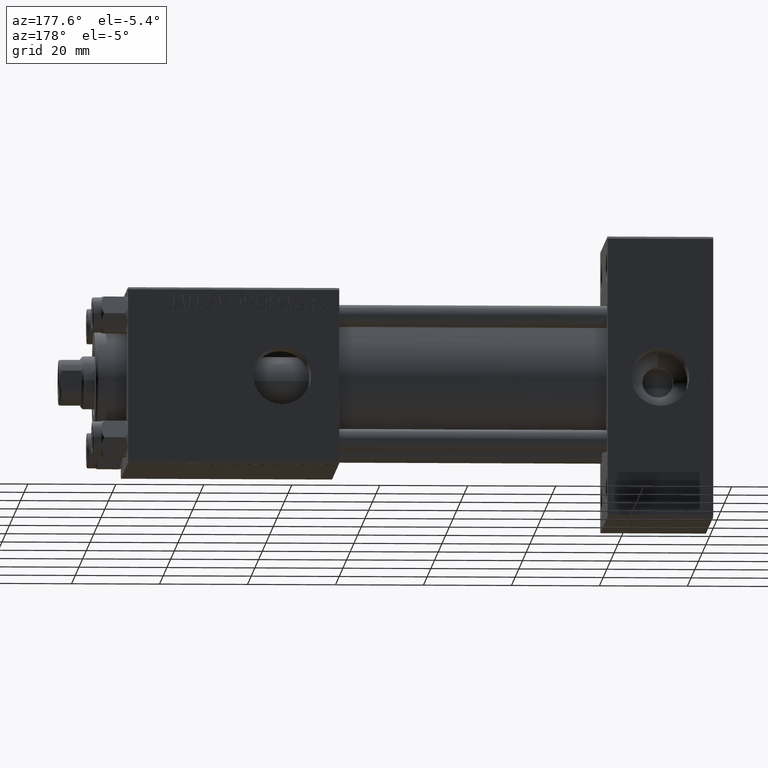
[diagram: clean part render]
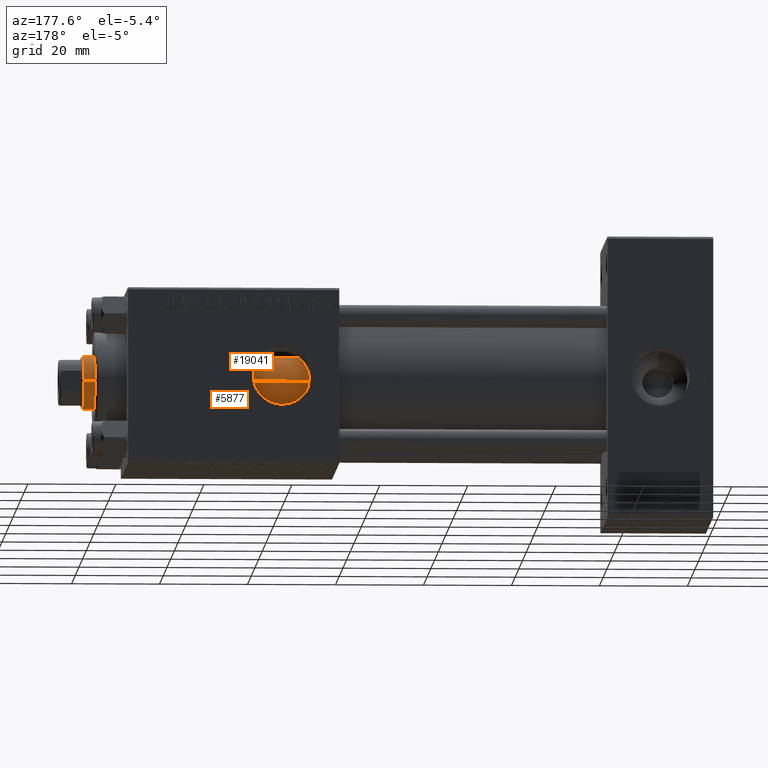
[diagram: same view with one multi-face feature highlighted, each face labeled with its STEP entity id]
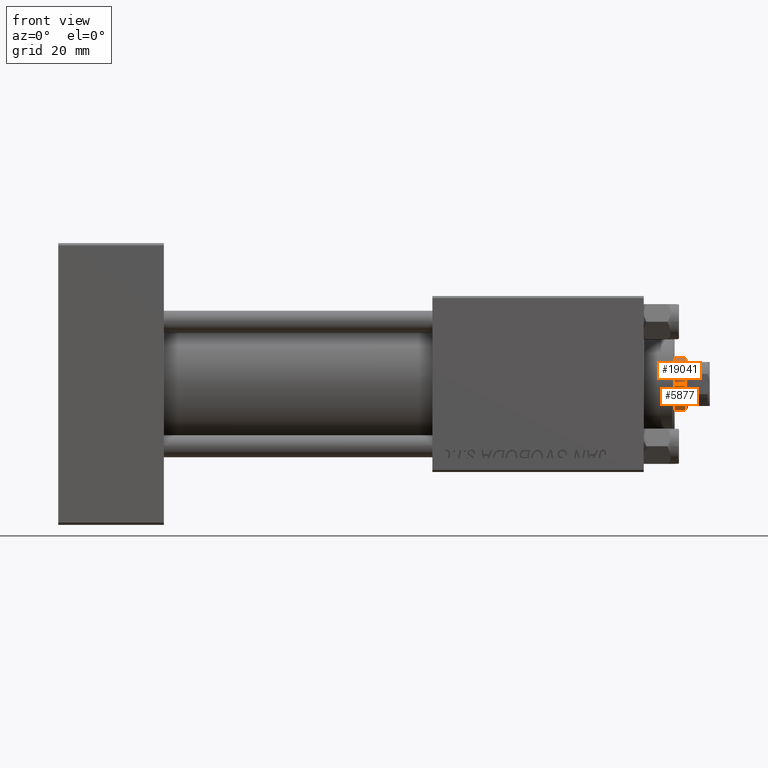
[diagram: same view with one multi-face feature highlighted, each face labeled with its STEP entity id]
A machine part, auxiliary view. The highlighted faces form ONE feature: a constant-radius fillet chain: 2 tangent blend faces with common blend radius 6 mm. The faces share edges in the B-rep.
A second angle (front view) of the same feature is appended — it is thin or edge-on in the first view.
Their STEP definitions:
[1] entity #5877 (Cylinder):
#2192 = CARTESIAN_POINT ( 'NONE',  ( -6.000000000000000888, 0.000000000000000000, 118.5000000000000284 ) ) ;
#2407 = ORIENTED_EDGE ( 'NONE', *, *, #48877, .T. ) ;
#3758 = CARTESIAN_POINT ( 'NONE',  ( 6.000000000000000888, 7.347880794884120722E-16, 27.00000000000000000 ) ) ;
#4783 = DIRECTION ( 'NONE',  ( -0.000000000000000000, -0.000000000000000000, -1.000000000000000000 ) ) ;
#5877 = ADVANCED_FACE ( 'NONE', ( #26299 ), #15169, .T. ) ;
#6856 = DIRECTION ( 'NONE',  ( -0.000000000000000000, -0.000000000000000000, -1.000000000000000000 ) ) ;
#8112 = ORIENTED_EDGE ( 'NONE', *, *, #29943, .T. ) ;
#8752 = AXIS2_PLACEMENT_3D ( 'NONE', #49759, #6856, #29578 ) ;
#8951 = VERTEX_POINT ( 'NONE', #2192 ) ;
#9940 = ORIENTED_EDGE ( 'NONE', *, *, #14184, .T. ) ;
#14015 = VERTEX_POINT ( 'NONE', #31167 ) ;
#14146 = VECTOR ( 'NONE', #4783, 1000.000000000000000 ) ;
#14184 = EDGE_CURVE ( 'NONE', #8951, #24883, #35506, .T. ) ;
#15133 = DIRECTION ( 'NONE',  ( 0.000000000000000000, 0.000000000000000000, 1.000000000000000000 ) ) ;
#15169 = CYLINDRICAL_SURFACE ( 'NONE', #8752, 6.000000000000000888 ) ;
#17315 = LINE ( 'NONE', #17804, #48658 ) ;
#17804 = CARTESIAN_POINT ( 'NONE',  ( 6.000000000000000888, 7.347880794884120722E-16, 119.0000000000000000 ) ) ;
#23054 = CARTESIAN_POINT ( 'NONE',  ( 0.000000000000000000, 0.000000000000000000, 118.5000000000000284 ) ) ;
#24883 = VERTEX_POINT ( 'NONE', #25555 ) ;
#25555 = CARTESIAN_POINT ( 'NONE',  ( 6.000000000000000888, 7.347880794884120722E-16, 118.5000000000000284 ) ) ;
#26299 = FACE_OUTER_BOUND ( 'NONE', #33897, .T. ) ;
#27776 = LINE ( 'NONE', #44161, #14146 ) ;
#28848 = EDGE_CURVE ( 'NONE', #8951, #14015, #27776, .T. ) ;
#29578 = DIRECTION ( 'NONE',  ( -1.000000000000000000, 0.000000000000000000, 0.000000000000000000 ) ) ;
#29943 = EDGE_CURVE ( 'NONE', #39074, #14015, #38367, .T. ) ;
#30299 = ORIENTED_EDGE ( 'NONE', *, *, #28848, .F. ) ;
#31167 = CARTESIAN_POINT ( 'NONE',  ( -6.000000000000000888, 0.000000000000000000, 27.00000000000000000 ) ) ;
#31902 = AXIS2_PLACEMENT_3D ( 'NONE', #49722, #15133, #46176 ) ;
#33897 = EDGE_LOOP ( 'NONE', ( #9940, #2407, #8112, #30299 ) ) ;
#35506 = CIRCLE ( 'NONE', #43576, 6.000000000000000888 ) ;
#36990 = DIRECTION ( 'NONE',  ( -0.000000000000000000, -0.000000000000000000, -1.000000000000000000 ) ) ;
#38367 = CIRCLE ( 'NONE', #31902, 6.000000000000000888 ) ;
#39074 = VERTEX_POINT ( 'NONE', #3758 ) ;
#41746 = DIRECTION ( 'NONE',  ( 0.000000000000000000, 0.000000000000000000, -1.000000000000000000 ) ) ;
#43576 = AXIS2_PLACEMENT_3D ( 'NONE', #23054, #41746, #45282 ) ;
#44161 = CARTESIAN_POINT ( 'NONE',  ( -6.000000000000000888, 0.000000000000000000, 119.0000000000000000 ) ) ;
#45282 = DIRECTION ( 'NONE',  ( 1.000000000000000000, 0.000000000000000000, 0.000000000000000000 ) ) ;
#46176 = DIRECTION ( 'NONE',  ( 1.000000000000000000, 0.000000000000000000, 0.000000000000000000 ) ) ;
#48658 = VECTOR ( 'NONE', #36990, 1000.000000000000000 ) ;
#48877 = EDGE_CURVE ( 'NONE', #24883, #39074, #17315, .T. ) ;
#49722 = CARTESIAN_POINT ( 'NONE',  ( 0.000000000000000000, 0.000000000000000000, 27.00000000000000000 ) ) ;
#49759 = CARTESIAN_POINT ( 'NONE',  ( 0.000000000000000000, 0.000000000000000000, 119.0000000000000000 ) ) ;
[2] entity #19041 (Cylinder):
#220 = FACE_OUTER_BOUND ( 'NONE', #1415, .T. ) ;
#1415 = EDGE_LOOP ( 'NONE', ( #36756, #37013, #47567, #6509 ) ) ;
#2192 = CARTESIAN_POINT ( 'NONE',  ( -6.000000000000000888, 0.000000000000000000, 118.5000000000000284 ) ) ;
#3758 = CARTESIAN_POINT ( 'NONE',  ( 6.000000000000000888, 7.347880794884120722E-16, 27.00000000000000000 ) ) ;
#4783 = DIRECTION ( 'NONE',  ( -0.000000000000000000, -0.000000000000000000, -1.000000000000000000 ) ) ;
#6509 = ORIENTED_EDGE ( 'NONE', *, *, #43514, .T. ) ;
#8951 = VERTEX_POINT ( 'NONE', #2192 ) ;
#12648 = DIRECTION ( 'NONE',  ( 1.000000000000000000, 0.000000000000000000, 0.000000000000000000 ) ) ;
#14015 = VERTEX_POINT ( 'NONE', #31167 ) ;
#14146 = VECTOR ( 'NONE', #4783, 1000.000000000000000 ) ;
#15617 = DIRECTION ( 'NONE',  ( -0.000000000000000000, -0.000000000000000000, -1.000000000000000000 ) ) ;
#17219 = AXIS2_PLACEMENT_3D ( 'NONE', #39916, #39664, #12648 ) ;
#17315 = LINE ( 'NONE', #17804, #48658 ) ;
#17804 = CARTESIAN_POINT ( 'NONE',  ( 6.000000000000000888, 7.347880794884120722E-16, 119.0000000000000000 ) ) ;
#18320 = DIRECTION ( 'NONE',  ( 1.000000000000000000, 0.000000000000000000, 0.000000000000000000 ) ) ;
#18669 = DIRECTION ( 'NONE',  ( -1.000000000000000000, 0.000000000000000000, 0.000000000000000000 ) ) ;
#19041 = ADVANCED_FACE ( 'NONE', ( #220 ), #26487, .T. ) ;
#22868 = DIRECTION ( 'NONE',  ( 0.000000000000000000, 0.000000000000000000, 1.000000000000000000 ) ) ;
#24883 = VERTEX_POINT ( 'NONE', #25555 ) ;
#25555 = CARTESIAN_POINT ( 'NONE',  ( 6.000000000000000888, 7.347880794884120722E-16, 118.5000000000000284 ) ) ;
#26487 = CYLINDRICAL_SURFACE ( 'NONE', #42894, 6.000000000000000888 ) ;
#27776 = LINE ( 'NONE', #44161, #14146 ) ;
#28848 = EDGE_CURVE ( 'NONE', #8951, #14015, #27776, .T. ) ;
#29930 = CARTESIAN_POINT ( 'NONE',  ( 0.000000000000000000, 0.000000000000000000, 27.00000000000000000 ) ) ;
#31167 = CARTESIAN_POINT ( 'NONE',  ( -6.000000000000000888, 0.000000000000000000, 27.00000000000000000 ) ) ;
#36756 = ORIENTED_EDGE ( 'NONE', *, *, #48877, .F. ) ;
#36990 = DIRECTION ( 'NONE',  ( -0.000000000000000000, -0.000000000000000000, -1.000000000000000000 ) ) ;
#37013 = ORIENTED_EDGE ( 'NONE', *, *, #49477, .T. ) ;
#38140 = CIRCLE ( 'NONE', #47792, 6.000000000000000888 ) ;
#38356 = CARTESIAN_POINT ( 'NONE',  ( 0.000000000000000000, 0.000000000000000000, 119.0000000000000000 ) ) ;
#38999 = CIRCLE ( 'NONE', #17219, 6.000000000000000888 ) ;
#39074 = VERTEX_POINT ( 'NONE', #3758 ) ;
#39664 = DIRECTION ( 'NONE',  ( 0.000000000000000000, 0.000000000000000000, -1.000000000000000000 ) ) ;
#39916 = CARTESIAN_POINT ( 'NONE',  ( 0.000000000000000000, 0.000000000000000000, 118.5000000000000284 ) ) ;
#42894 = AXIS2_PLACEMENT_3D ( 'NONE', #38356, #15617, #18669 ) ;
#43514 = EDGE_CURVE ( 'NONE', #14015, #39074, #38140, .T. ) ;
#44161 = CARTESIAN_POINT ( 'NONE',  ( -6.000000000000000888, 0.000000000000000000, 119.0000000000000000 ) ) ;
#47567 = ORIENTED_EDGE ( 'NONE', *, *, #28848, .T. ) ;
#47792 = AXIS2_PLACEMENT_3D ( 'NONE', #29930, #22868, #18320 ) ;
#48658 = VECTOR ( 'NONE', #36990, 1000.000000000000000 ) ;
#48877 = EDGE_CURVE ( 'NONE', #24883, #39074, #17315, .T. ) ;
#49477 = EDGE_CURVE ( 'NONE', #24883, #8951, #38999, .T. ) ;